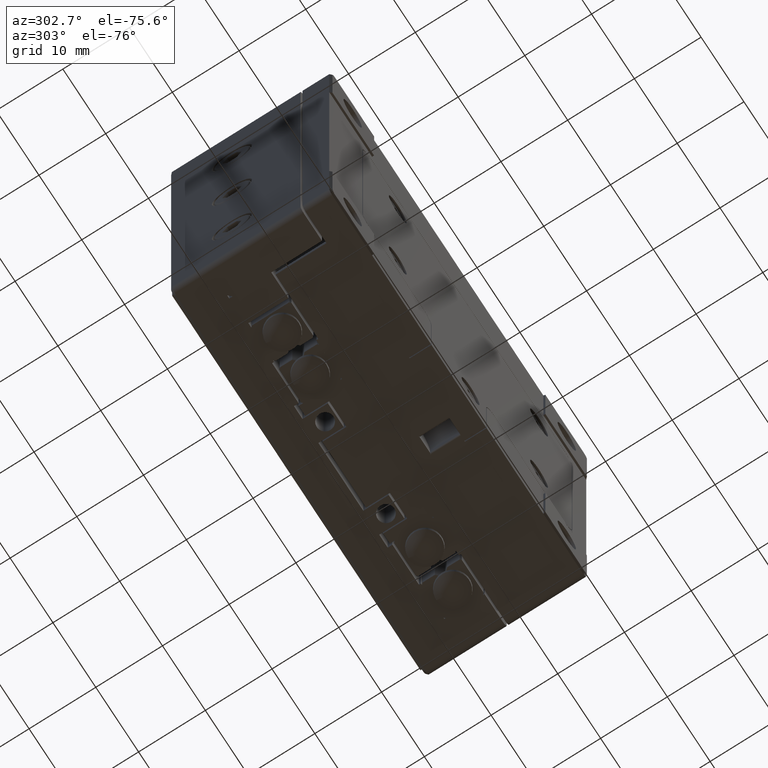
[diagram: clean part render]
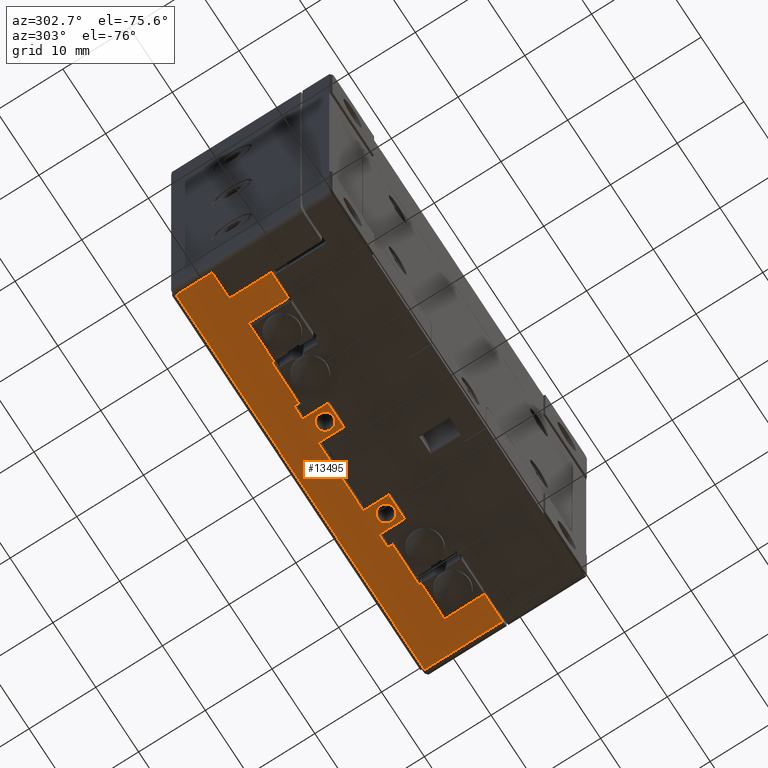
[diagram: same view with one face highlighted and labeled with its STEP entity id]
A machine part, auxiliary view. The second image highlights one B-rep face of the part: STEP entity #13495.
In plain terms, the highlighted planar face has unit normal (-0, 0, -1).
Its self-contained STEP definition (entity closure, byte-faithful):
#31 = CARTESIAN_POINT ( 'NONE',  ( 51.00000000000000000, -1.355252715606879951E-15, 60.00000000000000000 ) ) ;
#56 = DIRECTION ( 'NONE',  ( 1.000000000000000000, 1.445602896647339903E-16, 0.000000000000000000 ) ) ;
#355 = VECTOR ( 'NONE', #10175, 1000.000000000000000 ) ;
#385 = VECTOR ( 'NONE', #21096, 1000.000000000000000 ) ;
#401 = LINE ( 'NONE', #15534, #22779 ) ;
#493 = CARTESIAN_POINT ( 'NONE',  ( 16.89999999999999858, 7.000000000000000000, 60.00000000000000000 ) ) ;
#518 = CARTESIAN_POINT ( 'NONE',  ( 45.00000000000000000, 6.000000000000000000, 60.00000000000000000 ) ) ;
#550 = VERTEX_POINT ( 'NONE', #15621 ) ;
#647 = VERTEX_POINT ( 'NONE', #23710 ) ;
#728 = DIRECTION ( 'NONE',  ( -1.000000000000000000, 0.000000000000000000, 0.000000000000000000 ) ) ;
#945 = VECTOR ( 'NONE', #20789, 1000.000000000000000 ) ;
#950 = VECTOR ( 'NONE', #6278, 1000.000000000000000 ) ;
#998 = ORIENTED_EDGE ( 'NONE', *, *, #12544, .F. ) ;
#1023 = CARTESIAN_POINT ( 'NONE',  ( 1.000000000000000000, 11.70000000000000107, 60.00000000000000000 ) ) ;
#1036 = DIRECTION ( 'NONE',  ( 0.000000000000000000, 0.000000000000000000, 1.000000000000000000 ) ) ;
#1253 = CARTESIAN_POINT ( 'NONE',  ( 20.75000000000000000, 4.799999999999999822, 60.00000000000000000 ) ) ;
#1287 = CARTESIAN_POINT ( 'NONE',  ( 34.95000000000000284, 4.799999999999999822, 60.00000000000000000 ) ) ;
#1293 = ORIENTED_EDGE ( 'NONE', *, *, #19779, .T. ) ;
#1373 = DIRECTION ( 'NONE',  ( 1.000000000000000000, 0.000000000000000000, 0.000000000000000000 ) ) ;
#1678 = CARTESIAN_POINT ( 'NONE',  ( 55.00000000000000000, 6.299999999999999822, 60.00000000000000000 ) ) ;
#1732 = CARTESIAN_POINT ( 'NONE',  ( 10.69999999999999929, 6.299999999999999822, 60.00000000000000000 ) ) ;
#1764 = ORIENTED_EDGE ( 'NONE', *, *, #18180, .T. ) ;
#2044 = CARTESIAN_POINT ( 'NONE',  ( 55.00000000000000000, 6.299999999999999822, 60.00000000000000000 ) ) ;
#2243 = ORIENTED_EDGE ( 'NONE', *, *, #24418, .T. ) ;
#2251 = LINE ( 'NONE', #13851, #11630 ) ;
#2282 = AXIS2_PLACEMENT_3D ( 'NONE', #15118, #9432, #7288 ) ;
#2466 = VECTOR ( 'NONE', #24539, 1000.000000000000000 ) ;
#2590 = ORIENTED_EDGE ( 'NONE', *, *, #23518, .F. ) ;
#2621 = EDGE_CURVE ( 'NONE', #18232, #14635, #11399, .T. ) ;
#2626 = VERTEX_POINT ( 'NONE', #11274 ) ;
#2849 = VERTEX_POINT ( 'NONE', #13917 ) ;
#3017 = EDGE_CURVE ( 'NONE', #21136, #8761, #22249, .T. ) ;
#3107 = EDGE_CURVE ( 'NONE', #22996, #20231, #14790, .T. ) ;
#3293 = LINE ( 'NONE', #11343, #19264 ) ;
#3323 = VECTOR ( 'NONE', #4492, 1000.000000000000000 ) ;
#3329 = CARTESIAN_POINT ( 'NONE',  ( 36.79999999999999716, 3.200000000000000178, 60.00000000000000000 ) ) ;
#3652 = VERTEX_POINT ( 'NONE', #16174 ) ;
#3872 = VERTEX_POINT ( 'NONE', #14407 ) ;
#3922 = CARTESIAN_POINT ( 'NONE',  ( 10.69999999999999929, 6.299999999999999822, 60.00000000000000000 ) ) ;
#3954 = ORIENTED_EDGE ( 'NONE', *, *, #20524, .F. ) ;
#4123 = DIRECTION ( 'NONE',  ( 1.000000000000000000, 4.688441826964350214E-16, 0.000000000000000000 ) ) ;
#4226 = VECTOR ( 'NONE', #13150, 1000.000000000000000 ) ;
#4405 = CARTESIAN_POINT ( 'NONE',  ( 33.09999999999999432, 7.000000000000000000, 60.00000000000000000 ) ) ;
#4492 = DIRECTION ( 'NONE',  ( 0.000000000000000000, -1.000000000000000000, 0.000000000000000000 ) ) ;
#4523 = EDGE_CURVE ( 'NONE', #13557, #19364, #12209, .T. ) ;
#4563 = ORIENTED_EDGE ( 'NONE', *, *, #9091, .T. ) ;
#4577 = EDGE_CURVE ( 'NONE', #647, #11280, #2251, .T. ) ;
#4634 = EDGE_CURVE ( 'NONE', #20231, #8226, #19791, .T. ) ;
#5097 = ORIENTED_EDGE ( 'NONE', *, *, #3017, .F. ) ;
#5575 = VECTOR ( 'NONE', #13603, 1000.000000000000000 ) ;
#5640 = FACE_BOUND ( 'NONE', #23053, .T. ) ;
#5679 = LINE ( 'NONE', #13387, #385 ) ;
#5902 = CARTESIAN_POINT ( 'NONE',  ( 38.80000000000000426, 7.000000000000000000, 60.00000000000000000 ) ) ;
#6103 = VECTOR ( 'NONE', #24635, 1000.000000000000000 ) ;
#6278 = DIRECTION ( 'NONE',  ( 1.000000000000000000, 1.734723475976809806E-16, 0.000000000000000000 ) ) ;
#6405 = LINE ( 'NONE', #12222, #950 ) ;
#6837 = DIRECTION ( 'NONE',  ( 0.000000000000000000, 0.000000000000000000, 1.000000000000000000 ) ) ;
#6938 = CARTESIAN_POINT ( 'NONE',  ( 38.80000000000000426, 7.000000000000000000, 60.00000000000000000 ) ) ;
#7101 = ORIENTED_EDGE ( 'NONE', *, *, #10695, .T. ) ;
#7231 = VERTEX_POINT ( 'NONE', #2044 ) ;
#7256 = EDGE_CURVE ( 'NONE', #2626, #22996, #401, .T. ) ;
#7288 = DIRECTION ( 'NONE',  ( 1.000000000000000000, 0.000000000000000000, 0.000000000000000000 ) ) ;
#7405 = ORIENTED_EDGE ( 'NONE', *, *, #21405, .T. ) ;
#7641 = DIRECTION ( 'NONE',  ( 0.000000000000000000, -1.000000000000000000, 0.000000000000000000 ) ) ;
#7759 = CARTESIAN_POINT ( 'NONE',  ( 38.80000000000000426, 7.000000000000000000, 60.00000000000000000 ) ) ;
#8139 = AXIS2_PLACEMENT_3D ( 'NONE', #19140, #13344, #21299 ) ;
#8226 = VERTEX_POINT ( 'NONE', #15069 ) ;
#8376 = VECTOR ( 'NONE', #19958, 1000.000000000000000 ) ;
#8650 = CARTESIAN_POINT ( 'NONE',  ( 59.00000000000000000, 11.70000000000000107, 60.00000000000000000 ) ) ;
#8761 = VERTEX_POINT ( 'NONE', #12900 ) ;
#8836 = ORIENTED_EDGE ( 'NONE', *, *, #9784, .F. ) ;
#8931 = VECTOR ( 'NONE', #21821, 1000.000000000000000 ) ;
#8947 = ORIENTED_EDGE ( 'NONE', *, *, #21486, .T. ) ;
#9073 = ORIENTED_EDGE ( 'NONE', *, *, #21307, .T. ) ;
#9091 = EDGE_CURVE ( 'NONE', #14635, #21668, #12747, .T. ) ;
#9302 = DIRECTION ( 'NONE',  ( -1.000000000000000000, 0.000000000000000000, 0.000000000000000000 ) ) ;
#9324 = VERTEX_POINT ( 'NONE', #493 ) ;
#9412 = LINE ( 'NONE', #7759, #11045 ) ;
#9432 = DIRECTION ( 'NONE',  ( 0.000000000000000000, 0.000000000000000000, 1.000000000000000000 ) ) ;
#9445 = LINE ( 'NONE', #14757, #20381 ) ;
#9590 = EDGE_CURVE ( 'NONE', #17805, #16197, #20805, .T. ) ;
#9651 = LINE ( 'NONE', #1732, #945 ) ;
#9719 = DIRECTION ( 'NONE',  ( 1.000000000000000000, 0.000000000000000000, 0.000000000000000000 ) ) ;
#9739 = CIRCLE ( 'NONE', #13786, 1.250000000000001110 ) ;
#9784 = EDGE_CURVE ( 'NONE', #9324, #550, #19517, .T. ) ;
#10084 = CARTESIAN_POINT ( 'NONE',  ( 18.89999999999999858, 3.200000000000000178, 60.00000000000000000 ) ) ;
#10175 = DIRECTION ( 'NONE',  ( 0.000000000000000000, 1.000000000000000000, 0.000000000000000000 ) ) ;
#10256 = VECTOR ( 'NONE', #9719, 1000.000000000000000 ) ;
#10348 = ORIENTED_EDGE ( 'NONE', *, *, #23293, .T. ) ;
#10614 = VERTEX_POINT ( 'NONE', #13254 ) ;
#10695 = EDGE_CURVE ( 'NONE', #7231, #12204, #6405, .T. ) ;
#10715 = CARTESIAN_POINT ( 'NONE',  ( 38.80000000000000426, 6.299999999999999822, 60.00000000000000000 ) ) ;
#10731 = CARTESIAN_POINT ( 'NONE',  ( 10.69999999999999929, 6.000000000000000000, 60.00000000000000000 ) ) ;
#10882 = AXIS2_PLACEMENT_3D ( 'NONE', #1287, #1036, #12501 ) ;
#10930 = LINE ( 'NONE', #18658, #14475 ) ;
#11045 = VECTOR ( 'NONE', #9302, 1000.000000000000000 ) ;
#11059 = DIRECTION ( 'NONE',  ( 1.000000000000000000, 0.000000000000000000, 0.000000000000000000 ) ) ;
#11274 = CARTESIAN_POINT ( 'NONE',  ( 5.200000000000000178, 0.000000000000000000, 60.00000000000000000 ) ) ;
#11280 = VERTEX_POINT ( 'NONE', #20281 ) ;
#11306 = CARTESIAN_POINT ( 'NONE',  ( 51.00000000000000000, 6.000000000000000000, 60.00000000000000000 ) ) ;
#11330 = DIRECTION ( 'NONE',  ( 0.000000000000000000, 1.000000000000000000, 0.000000000000000000 ) ) ;
#11343 = CARTESIAN_POINT ( 'NONE',  ( 1.000000000000000000, 0.000000000000000000, 60.00000000000000000 ) ) ;
#11399 = LINE ( 'NONE', #18742, #20742 ) ;
#11428 = EDGE_CURVE ( 'NONE', #16197, #18232, #24818, .T. ) ;
#11442 = CARTESIAN_POINT ( 'NONE',  ( 38.80000000000000426, 7.000000000000000000, 60.00000000000000000 ) ) ;
#11555 = CARTESIAN_POINT ( 'NONE',  ( 45.00000000000000000, 6.000000000000000000, 60.00000000000000000 ) ) ;
#11565 = FACE_BOUND ( 'NONE', #12465, .T. ) ;
#11630 = VECTOR ( 'NONE', #21318, 1000.000000000000000 ) ;
#11739 = ORIENTED_EDGE ( 'NONE', *, *, #19443, .F. ) ;
#12065 = CARTESIAN_POINT ( 'NONE',  ( 16.89999999999999858, 7.000000000000000000, 60.00000000000000000 ) ) ;
#12092 = DIRECTION ( 'NONE',  ( 1.826024711554534801E-15, -1.000000000000000000, 0.000000000000000000 ) ) ;
#12171 = EDGE_LOOP ( 'NONE', ( #21433, #8947, #16208, #13142, #12789, #4563, #9073, #7101, #22016, #22031, #20217, #1764, #24814, #13464, #17861, #2243, #8836, #998, #10348, #7405, #16633, #3954, #1293, #15436, #15243, #20153 ) ) ;
#12204 = VERTEX_POINT ( 'NONE', #18788 ) ;
#12209 = LINE ( 'NONE', #5902, #5575 ) ;
#12222 = CARTESIAN_POINT ( 'NONE',  ( 60.00000000000000000, 6.299999999999999822, 60.00000000000000000 ) ) ;
#12465 = EDGE_LOOP ( 'NONE', ( #13842, #2590 ) ) ;
#12501 = DIRECTION ( 'NONE',  ( 1.000000000000000000, 0.000000000000000000, 0.000000000000000000 ) ) ;
#12544 = EDGE_CURVE ( 'NONE', #2849, #9324, #18263, .T. ) ;
#12747 = LINE ( 'NONE', #20834, #6103 ) ;
#12789 = ORIENTED_EDGE ( 'NONE', *, *, #2621, .T. ) ;
#12900 = CARTESIAN_POINT ( 'NONE',  ( 33.70000000000000284, 4.799999999999999822, 60.00000000000000000 ) ) ;
#12998 = DIRECTION ( 'NONE',  ( -1.000000000000000000, 0.000000000000000000, 0.000000000000000000 ) ) ;
#13006 = DIRECTION ( 'NONE',  ( 0.000000000000000000, -1.000000000000000000, 0.000000000000000000 ) ) ;
#13021 = LINE ( 'NONE', #1678, #4226 ) ;
#13116 = VECTOR ( 'NONE', #15657, 1000.000000000000000 ) ;
#13142 = ORIENTED_EDGE ( 'NONE', *, *, #11428, .T. ) ;
#13150 = DIRECTION ( 'NONE',  ( 0.000000000000000000, 1.000000000000000000, 0.000000000000000000 ) ) ;
#13254 = CARTESIAN_POINT ( 'NONE',  ( 33.09999999999999432, 3.200000000000000178, 60.00000000000000000 ) ) ;
#13344 = DIRECTION ( 'NONE',  ( 0.000000000000000000, 0.000000000000000000, 1.000000000000000000 ) ) ;
#13387 = CARTESIAN_POINT ( 'NONE',  ( 59.00000000000000000, 12.00000000000000000, 60.00000000000000000 ) ) ;
#13464 = ORIENTED_EDGE ( 'NONE', *, *, #3107, .T. ) ;
#13495 = ADVANCED_FACE ( 'NONE', ( #18791, #11565, #5640 ), #20691, .T. ) ;
#13557 = VERTEX_POINT ( 'NONE', #11442 ) ;
#13603 = DIRECTION ( 'NONE',  ( 0.000000000000000000, -1.000000000000000000, 0.000000000000000000 ) ) ;
#13612 = CARTESIAN_POINT ( 'NONE',  ( 36.79999999999999716, 3.200000000000000178, 60.00000000000000000 ) ) ;
#13711 = CARTESIAN_POINT ( 'NONE',  ( 33.09999999999999432, 3.200000000000000178, 60.00000000000000000 ) ) ;
#13786 = AXIS2_PLACEMENT_3D ( 'NONE', #1253, #24611, #11059 ) ;
#13842 = ORIENTED_EDGE ( 'NONE', *, *, #23340, .F. ) ;
#13851 = CARTESIAN_POINT ( 'NONE',  ( 22.59999999999999787, 3.200000000000000178, 60.00000000000000000 ) ) ;
#13917 = CARTESIAN_POINT ( 'NONE',  ( 18.89999999999999858, 7.000000000000000000, 60.00000000000000000 ) ) ;
#13991 = LINE ( 'NONE', #4405, #23712 ) ;
#14407 = CARTESIAN_POINT ( 'NONE',  ( 36.79999999999999716, 7.000000000000000000, 60.00000000000000000 ) ) ;
#14434 = VERTEX_POINT ( 'NONE', #3329 ) ;
#14475 = VECTOR ( 'NONE', #1373, 1000.000000000000000 ) ;
#14546 = DIRECTION ( 'NONE',  ( 1.000000000000000000, 0.000000000000000000, 0.000000000000000000 ) ) ;
#14590 = VECTOR ( 'NONE', #7641, 1000.000000000000000 ) ;
#14635 = VERTEX_POINT ( 'NONE', #31 ) ;
#14757 = CARTESIAN_POINT ( 'NONE',  ( 1.000000000000000000, 11.70000000000000107, 60.00000000000000000 ) ) ;
#14790 = LINE ( 'NONE', #22516, #2466 ) ;
#15069 = CARTESIAN_POINT ( 'NONE',  ( 10.69999999999999929, 6.299999999999999822, 60.00000000000000000 ) ) ;
#15118 = CARTESIAN_POINT ( 'NONE',  ( 0.000000000000000000, 0.000000000000000000, 60.00000000000000000 ) ) ;
#15243 = ORIENTED_EDGE ( 'NONE', *, *, #17792, .T. ) ;
#15436 = ORIENTED_EDGE ( 'NONE', *, *, #23642, .T. ) ;
#15534 = CARTESIAN_POINT ( 'NONE',  ( 5.200000000000000178, 0.000000000000000000, 60.00000000000000000 ) ) ;
#15621 = CARTESIAN_POINT ( 'NONE',  ( 16.89999999999999858, 6.299999999999999822, 60.00000000000000000 ) ) ;
#15657 = DIRECTION ( 'NONE',  ( 1.000000000000000000, 0.000000000000000000, 0.000000000000000000 ) ) ;
#15790 = VERTEX_POINT ( 'NONE', #16961 ) ;
#15893 = LINE ( 'NONE', #3922, #10256 ) ;
#15986 = CARTESIAN_POINT ( 'NONE',  ( 10.69999999999999929, 6.000000000000000000, 60.00000000000000000 ) ) ;
#16124 = EDGE_CURVE ( 'NONE', #12204, #23736, #5679, .T. ) ;
#16174 = CARTESIAN_POINT ( 'NONE',  ( 22.00000000000000000, 4.799999999999999822, 60.00000000000000000 ) ) ;
#16197 = VERTEX_POINT ( 'NONE', #518 ) ;
#16208 = ORIENTED_EDGE ( 'NONE', *, *, #9590, .T. ) ;
#16427 = VERTEX_POINT ( 'NONE', #1023 ) ;
#16552 = LINE ( 'NONE', #6938, #8376 ) ;
#16633 = ORIENTED_EDGE ( 'NONE', *, *, #4577, .T. ) ;
#16739 = VERTEX_POINT ( 'NONE', #19795 ) ;
#16961 = CARTESIAN_POINT ( 'NONE',  ( 18.89999999999999858, 3.200000000000000178, 60.00000000000000000 ) ) ;
#17537 = CARTESIAN_POINT ( 'NONE',  ( 45.00000000000000000, 6.299999999999999822, 60.00000000000000000 ) ) ;
#17561 = LINE ( 'NONE', #10084, #13116 ) ;
#17723 = CARTESIAN_POINT ( 'NONE',  ( 36.20000000000000284, 4.799999999999999822, 60.00000000000000000 ) ) ;
#17792 = EDGE_CURVE ( 'NONE', #14434, #3872, #19172, .T. ) ;
#17805 = VERTEX_POINT ( 'NONE', #17537 ) ;
#17861 = ORIENTED_EDGE ( 'NONE', *, *, #4634, .T. ) ;
#18180 = EDGE_CURVE ( 'NONE', #24458, #2626, #10930, .T. ) ;
#18232 = VERTEX_POINT ( 'NONE', #11306 ) ;
#18263 = LINE ( 'NONE', #20028, #20796 ) ;
#18658 = CARTESIAN_POINT ( 'NONE',  ( 0.000000000000000000, 0.000000000000000000, 60.00000000000000000 ) ) ;
#18742 = CARTESIAN_POINT ( 'NONE',  ( 51.00000000000000000, -1.355252715606879951E-15, 60.00000000000000000 ) ) ;
#18788 = CARTESIAN_POINT ( 'NONE',  ( 59.00000000000000000, 6.299999999999999822, 60.00000000000000000 ) ) ;
#18791 = FACE_OUTER_BOUND ( 'NONE', #12171, .T. ) ;
#19140 = CARTESIAN_POINT ( 'NONE',  ( 20.75000000000000000, 4.799999999999999822, 60.00000000000000000 ) ) ;
#19172 = LINE ( 'NONE', #13612, #19705 ) ;
#19264 = VECTOR ( 'NONE', #13006, 1000.000000000000000 ) ;
#19268 = LINE ( 'NONE', #13711, #24279 ) ;
#19364 = VERTEX_POINT ( 'NONE', #10715 ) ;
#19443 = EDGE_CURVE ( 'NONE', #8761, #21136, #24228, .T. ) ;
#19474 = EDGE_CURVE ( 'NONE', #13557, #3872, #16552, .T. ) ;
#19505 = VECTOR ( 'NONE', #56, 1000.000000000000000 ) ;
#19517 = LINE ( 'NONE', #12065, #3323 ) ;
#19573 = EDGE_CURVE ( 'NONE', #16427, #24458, #3293, .T. ) ;
#19705 = VECTOR ( 'NONE', #11330, 1000.000000000000000 ) ;
#19779 = EDGE_CURVE ( 'NONE', #23606, #10614, #13991, .T. ) ;
#19791 = LINE ( 'NONE', #15986, #355 ) ;
#19795 = CARTESIAN_POINT ( 'NONE',  ( 19.50000000000000000, 4.799999999999999822, 60.00000000000000000 ) ) ;
#19958 = DIRECTION ( 'NONE',  ( -1.000000000000000000, 0.000000000000000000, 0.000000000000000000 ) ) ;
#20028 = CARTESIAN_POINT ( 'NONE',  ( 38.80000000000000426, 7.000000000000000000, 60.00000000000000000 ) ) ;
#20153 = ORIENTED_EDGE ( 'NONE', *, *, #19474, .F. ) ;
#20217 = ORIENTED_EDGE ( 'NONE', *, *, #19573, .T. ) ;
#20231 = VERTEX_POINT ( 'NONE', #10731 ) ;
#20281 = CARTESIAN_POINT ( 'NONE',  ( 22.59999999999999787, 7.000000000000000000, 60.00000000000000000 ) ) ;
#20381 = VECTOR ( 'NONE', #12998, 1000.000000000000000 ) ;
#20524 = EDGE_CURVE ( 'NONE', #23606, #11280, #9412, .T. ) ;
#20691 = PLANE ( 'NONE',  #2282 ) ;
#20742 = VECTOR ( 'NONE', #24444, 1000.000000000000000 ) ;
#20774 = CARTESIAN_POINT ( 'NONE',  ( 51.00000000000000000, 6.000000000000000000, 60.00000000000000000 ) ) ;
#20789 = DIRECTION ( 'NONE',  ( 1.000000000000000000, 0.000000000000000000, 0.000000000000000000 ) ) ;
#20796 = VECTOR ( 'NONE', #728, 1000.000000000000000 ) ;
#20805 = LINE ( 'NONE', #11555, #14590 ) ;
#20829 = CARTESIAN_POINT ( 'NONE',  ( 55.00000000000000000, -8.673617379884030542E-16, 60.00000000000000000 ) ) ;
#20834 = CARTESIAN_POINT ( 'NONE',  ( 55.00000000000000000, -8.673617379884030542E-16, 60.00000000000000000 ) ) ;
#21096 = DIRECTION ( 'NONE',  ( 0.000000000000000000, 1.000000000000000000, 0.000000000000000000 ) ) ;
#21136 = VERTEX_POINT ( 'NONE', #17723 ) ;
#21152 = CARTESIAN_POINT ( 'NONE',  ( 1.000000000000000000, 0.000000000000000000, 60.00000000000000000 ) ) ;
#21171 = CARTESIAN_POINT ( 'NONE',  ( 33.09999999999999432, 7.000000000000000000, 60.00000000000000000 ) ) ;
#21299 = DIRECTION ( 'NONE',  ( 1.000000000000000000, 0.000000000000000000, 0.000000000000000000 ) ) ;
#21307 = EDGE_CURVE ( 'NONE', #21668, #7231, #13021, .T. ) ;
#21318 = DIRECTION ( 'NONE',  ( 0.000000000000000000, 1.000000000000000000, 0.000000000000000000 ) ) ;
#21405 = EDGE_CURVE ( 'NONE', #15790, #647, #17561, .T. ) ;
#21433 = ORIENTED_EDGE ( 'NONE', *, *, #4523, .T. ) ;
#21486 = EDGE_CURVE ( 'NONE', #19364, #17805, #15893, .T. ) ;
#21668 = VERTEX_POINT ( 'NONE', #20829 ) ;
#21700 = EDGE_CURVE ( 'NONE', #23736, #16427, #9445, .T. ) ;
#21821 = DIRECTION ( 'NONE',  ( 0.000000000000000000, -1.000000000000000000, 0.000000000000000000 ) ) ;
#21948 = CARTESIAN_POINT ( 'NONE',  ( 18.89999999999999858, 7.000000000000000000, 60.00000000000000000 ) ) ;
#22016 = ORIENTED_EDGE ( 'NONE', *, *, #16124, .T. ) ;
#22031 = ORIENTED_EDGE ( 'NONE', *, *, #21700, .T. ) ;
#22249 = CIRCLE ( 'NONE', #24248, 1.250000000000001110 ) ;
#22516 = CARTESIAN_POINT ( 'NONE',  ( 5.200000000000000178, 6.000000000000000000, 60.00000000000000000 ) ) ;
#22779 = VECTOR ( 'NONE', #23018, 1000.000000000000000 ) ;
#22996 = VERTEX_POINT ( 'NONE', #24879 ) ;
#23018 = DIRECTION ( 'NONE',  ( 0.000000000000000000, 1.000000000000000000, 0.000000000000000000 ) ) ;
#23053 = EDGE_LOOP ( 'NONE', ( #5097, #11739 ) ) ;
#23293 = EDGE_CURVE ( 'NONE', #2849, #15790, #23850, .T. ) ;
#23340 = EDGE_CURVE ( 'NONE', #3652, #16739, #9739, .T. ) ;
#23518 = EDGE_CURVE ( 'NONE', #16739, #3652, #24696, .T. ) ;
#23606 = VERTEX_POINT ( 'NONE', #21171 ) ;
#23642 = EDGE_CURVE ( 'NONE', #10614, #14434, #19268, .T. ) ;
#23710 = CARTESIAN_POINT ( 'NONE',  ( 22.59999999999999787, 3.200000000000000178, 60.00000000000000000 ) ) ;
#23712 = VECTOR ( 'NONE', #12092, 1000.000000000000000 ) ;
#23736 = VERTEX_POINT ( 'NONE', #8650 ) ;
#23850 = LINE ( 'NONE', #21948, #8931 ) ;
#24167 = CARTESIAN_POINT ( 'NONE',  ( 34.95000000000000284, 4.799999999999999822, 60.00000000000000000 ) ) ;
#24228 = CIRCLE ( 'NONE', #10882, 1.250000000000001110 ) ;
#24248 = AXIS2_PLACEMENT_3D ( 'NONE', #24167, #6837, #14546 ) ;
#24279 = VECTOR ( 'NONE', #4123, 1000.000000000000000 ) ;
#24418 = EDGE_CURVE ( 'NONE', #8226, #550, #9651, .T. ) ;
#24444 = DIRECTION ( 'NONE',  ( 0.000000000000000000, -1.000000000000000000, 0.000000000000000000 ) ) ;
#24458 = VERTEX_POINT ( 'NONE', #21152 ) ;
#24539 = DIRECTION ( 'NONE',  ( 1.000000000000000000, 0.000000000000000000, 0.000000000000000000 ) ) ;
#24611 = DIRECTION ( 'NONE',  ( 0.000000000000000000, 0.000000000000000000, 1.000000000000000000 ) ) ;
#24635 = DIRECTION ( 'NONE',  ( 1.000000000000000000, 1.219727444046191995E-16, 0.000000000000000000 ) ) ;
#24696 = CIRCLE ( 'NONE', #8139, 1.250000000000001110 ) ;
#24814 = ORIENTED_EDGE ( 'NONE', *, *, #7256, .T. ) ;
#24818 = LINE ( 'NONE', #20774, #19505 ) ;
#24879 = CARTESIAN_POINT ( 'NONE',  ( 5.200000000000000178, 6.000000000000000000, 60.00000000000000000 ) ) ;